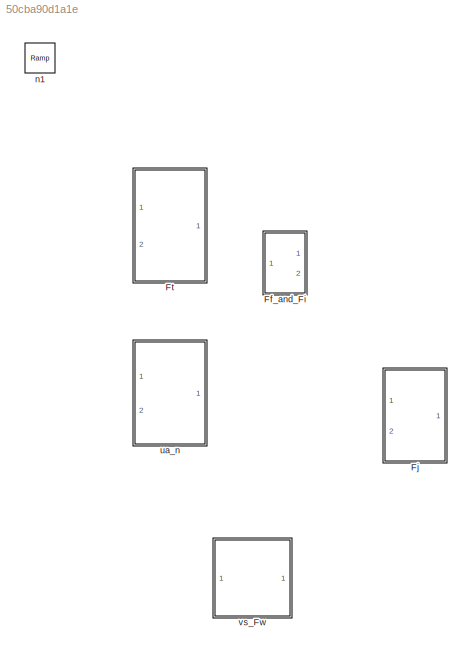
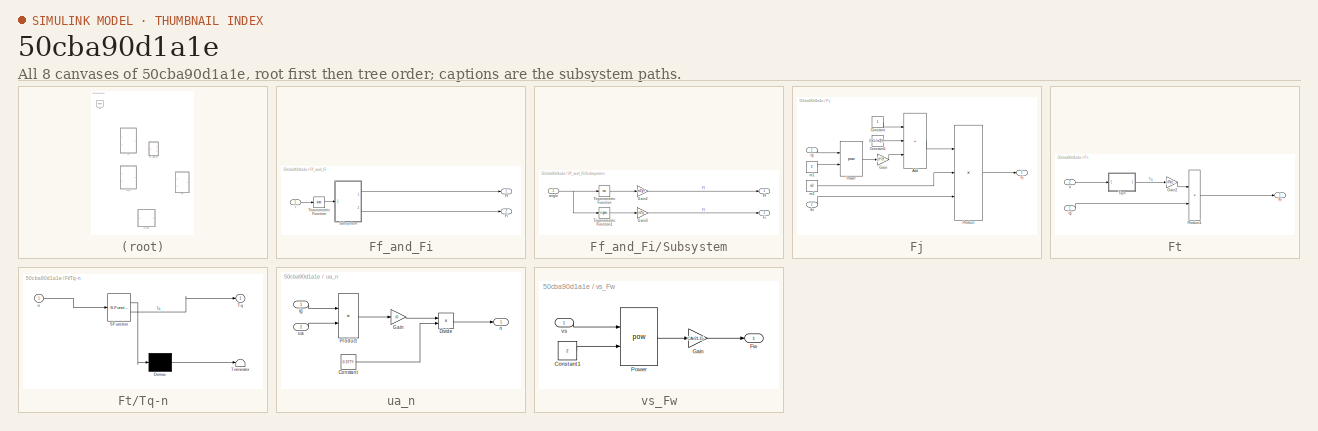
[diagram: thumbnail index - all 8 canvases of the model, root first then tree order]
MODEL slx_50cba90d1a1e
KIND model
CONFIG AbsTol = auto
CONFIG EnableMultiTasking = off
CONFIG FixedStep = auto
CONFIG MaxStep = auto
CONFIG MinStep = auto
CONFIG RelTol = 1e-3
CONFIG SampleTimeConstraint = Unconstrained
CONFIG SolverName = VariableStepAuto
CONFIG StartTime = 0.0
CONFIG StopTime = 10.0
WORKSPACE source: mxarray member
WORKSPACE CA = 2.77
WORKSPACE If = 0.218
WORKSPACE Iw1 = 1.798
WORKSPACE Iw2 = 3.598
WORKSPACE L = 3.2
WORKSPACE a = 1.947
WORKSPACE f = 0.013
WORKSPACE g = 9.8
WORKSPACE hg = 0.9
WORKSPACE i0 = 5.83
WORKSPACE j = 0
WORKSPACE kt = 0.85
WORKSPACE m1 = 1800
WORKSPACE m2 = 3880
WORKSPACE r = 0.367
BLOCK [SubSystem] Ff_and_Fi
  Ports = [1, 2]
  RequestExecContextInheritance = off
BLOCK [Outport] Ff_and_Fi/Ff
BLOCK [Outport] Ff_and_Fi/Fi
  Port = 2
BLOCK [SubSystem] Ff_and_Fi/Subsystem
  Ports = [1, 2]
  RequestExecContextInheritance = off
BLOCK [Outport] Ff_and_Fi/Subsystem/Ff
BLOCK [Outport] Ff_and_Fi/Subsystem/Fi
  Port = 2
BLOCK [Gain] Ff_and_Fi/Subsystem/Gain2
  Gain = m2*g*f
BLOCK [Gain] Ff_and_Fi/Subsystem/Gain3
  Gain = m2*g
BLOCK [Trigonometry] Ff_and_Fi/Subsystem/Trigonometric Function
  Operator = cos
  Ports = [1, 1]
BLOCK [Trigonometry] Ff_and_Fi/Subsystem/Trigonometric Function1
  Ports = [1, 1]
BLOCK [Inport] Ff_and_Fi/Subsystem/angle
BLOCK [Trigonometry] Ff_and_Fi/Trigonometric Function
  Operator = atan
  Ports = [1, 1]
BLOCK [Inport] Ff_and_Fi/i
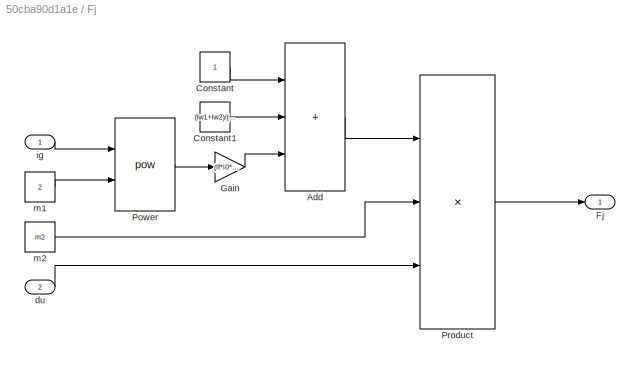
BLOCK [SubSystem] Fj
  Ports = [2, 1]
  RequestExecContextInheritance = off
BLOCK [Sum] Fj/Add
  IconShape = rectangular
  Inputs = +++
  Ports = [3, 1]
BLOCK [Constant] Fj/Constant
BLOCK [Constant] Fj/Constant1
  Value = (Iw1+Iw2)/(m2*r*r)
BLOCK [Outport] Fj/Fj
BLOCK [Gain] Fj/Gain
  Gain = (If*i0*i0*kt)/(m2*r*r)
BLOCK [Math] Fj/Power
  Operator = pow
  Ports = [2, 1]
BLOCK [Product] Fj/Product
  Inputs = 3
  Ports = [3, 1]
BLOCK [Inport] Fj/du
  Port = 2
BLOCK [Inport] Fj/ig
BLOCK [Constant] Fj/m1
  Value = 2
BLOCK [Constant] Fj/m2
  Value = m2
BLOCK [SubSystem] Ft
  Ports = [2, 1]
  RequestExecContextInheritance = off
BLOCK [Outport] Ft/Ft
BLOCK [Gain] Ft/Gain2
  Gain = (i0*kt)/r
BLOCK [Product] Ft/Product1
  Ports = [2, 1]
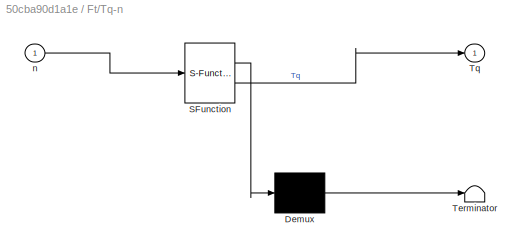
BLOCK [SubSystem] Ft/Tq-n
  ErrorFcn = Stateflow.Translate.translate
  PermitHierarchicalResolution = ExplicitOnly
  Ports = [1, 1]
  RequestExecContextInheritance = off
  SFBlockType = MATLAB Function
  TreatAsAtomicUnit = on
BLOCK [Demux] Ft/Tq-n/ Demux 
  Outputs = 1
  Ports = [1, 1]
BLOCK [S-Function] Ft/Tq-n/ SFunction 
  EnableBusSupport = on
  FunctionName = sf_sfun
  PortCounts = [1 2]
  Ports = [1, 2]
  SFcnIsStateOwnerBlock = off
  SFunctionDeploymentMode = off
  Tag = Stateflow S-Function 1
BLOCK [Terminator] Ft/Tq-n/ Terminator 
BLOCK [Outport] Ft/Tq-n/Tq
  VectorParamsAs1DForOutWhenUnconnected = off
BLOCK [Inport] Ft/Tq-n/n
BLOCK [Inport] Ft/ig
BLOCK [Inport] Ft/n
  Port = 2
BLOCK [Reference] n1  REF=simulink/Sources/Ramp
  Ports = [0, 1]
  SourceBlock = simulink/Sources/Ramp
  SourceProductBaseCode = SL
  SourceType = Ramp
BLOCK [SubSystem] ua_n
  Ports = [2, 1]
  RequestExecContextInheritance = off
BLOCK [Constant] ua_n/Constant
  Value = 0.377*r
BLOCK [Product] ua_n/Divide
  Inputs = */
  Ports = [2, 1]
BLOCK [Gain] ua_n/Gain
  Gain = i0
BLOCK [Product] ua_n/Product
  Ports = [2, 1]
BLOCK [Inport] ua_n/ig
BLOCK [Outport] ua_n/n
BLOCK [Inport] ua_n/ua
  Port = 2
BLOCK [SubSystem] vs_Fw
  Ports = [1, 1]
  RequestExecContextInheritance = off
BLOCK [Constant] vs_Fw/Constant1
  Value = 2
BLOCK [Outport] vs_Fw/Fw
BLOCK [Gain] vs_Fw/Gain
  Gain = CA/21.15
BLOCK [Math] vs_Fw/Power
  Operator = pow
  Ports = [2, 1]
BLOCK [Inport] vs_Fw/vs
LINE Ff_and_Fi/Subsystem/Gain2:1 -> Ff_and_Fi/Subsystem/Ff:1
LINE Ff_and_Fi/Subsystem/Gain3:1 -> Ff_and_Fi/Subsystem/Fi:1
LINE Ff_and_Fi/Subsystem/Trigonometric Function1:1 -> Ff_and_Fi/Subsystem/Gain3:1
LINE Ff_and_Fi/Subsystem/Trigonometric Function:1 -> Ff_and_Fi/Subsystem/Gain2:1
NET Ff_and_Fi/Subsystem/angle:1 -> Ff_and_Fi/Subsystem/Trigonometric Function1:1, Ff_and_Fi/Subsystem/Trigonometric Function:1
LINE Ff_and_Fi/Subsystem:1 -> Ff_and_Fi/Ff:1
LINE Ff_and_Fi/Subsystem:2 -> Ff_and_Fi/Fi:1
LINE Ff_and_Fi/Trigonometric Function:1 -> Ff_and_Fi/Subsystem:1
LINE Ff_and_Fi/i:1 -> Ff_and_Fi/Trigonometric Function:1
LINE Fj/Add:1 -> Fj/Product:1
LINE Fj/Constant1:1 -> Fj/Add:2
LINE Fj/Constant:1 -> Fj/Add:1
LINE Fj/Gain:1 -> Fj/Add:3
LINE Fj/Power:1 -> Fj/Gain:1
LINE Fj/Product:1 -> Fj/Fj:1
LINE Fj/du:1 -> Fj/Product:3
LINE Fj/ig:1 -> Fj/Power:1
LINE Fj/m1:1 -> Fj/Power:2
LINE Fj/m2:1 -> Fj/Product:2
LINE Ft/Gain2:1 -> Ft/Product1:1
LINE Ft/Product1:1 -> Ft/Ft:1
LINE Ft/Tq-n:1 -> Ft/Gain2:1
LINE Ft/ig:1 -> Ft/Product1:2
LINE Ft/n:1 -> Ft/Tq-n:1
LINE ua_n/Constant:1 -> ua_n/Divide:2
LINE ua_n/Divide:1 -> ua_n/n:1
LINE ua_n/Gain:1 -> ua_n/Divide:1
LINE ua_n/Product:1 -> ua_n/Gain:1
LINE ua_n/ig:1 -> ua_n/Product:1
LINE ua_n/ua:1 -> ua_n/Product:2
LINE vs_Fw/Constant1:1 -> vs_Fw/Power:2
LINE vs_Fw/Gain:1 -> vs_Fw/Fw:1
LINE vs_Fw/Power:1 -> vs_Fw/Gain:1
LINE vs_Fw/vs:1 -> vs_Fw/Power:1
note: NET lines group one-source signal fan-out (src -> all destinations, sorted); 1:1 wires keep LINE
CHART Ft/Tq-n states=1 transitions=1
  STATE_LABEL 'eML_blk_kernel()'
  STATE_LABEL 'SCRIPT:\nfunction Tq = fcn(n)\n%#codegen\n\nTq = -19.313+295.27*(n/1000)-165.44*(n/1000)^2+40.874*(n/1000)^3-3.8445*(n/1000)^4;'
CHART  states=0 transitions=0
